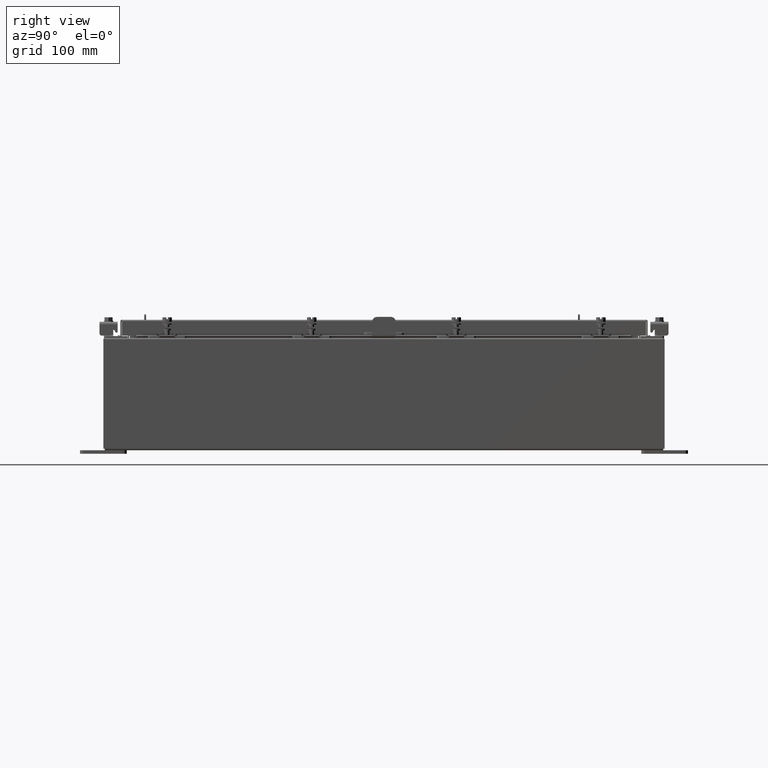
[diagram: clean part render]
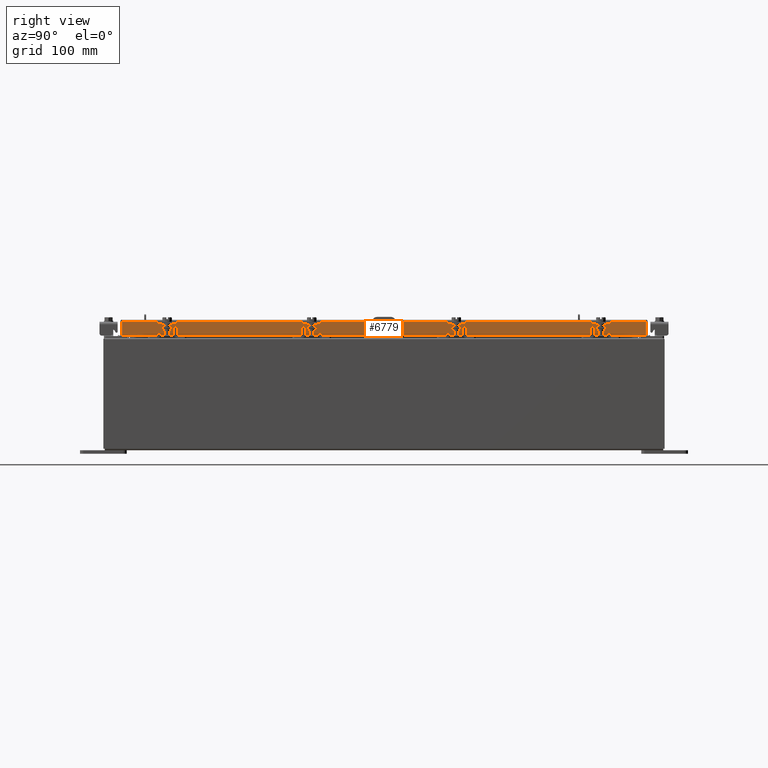
[diagram: same view with one face highlighted and labeled with its STEP entity id]
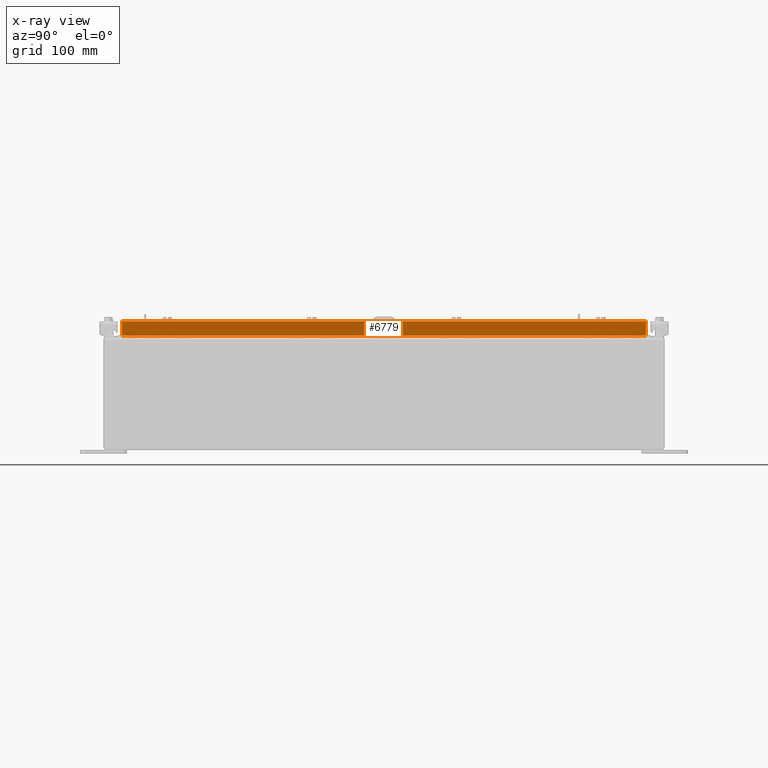
[diagram: x-ray of the same camera — body ghosted, the highlighted face saturated]
A machine part, right view. The second image highlights one B-rep face of the part: STEP entity #6779.
The next image is the same camera in x-ray: the body ghosted, the highlighted face saturated — about 0% of this face is hidden behind the body in this view.
In plain terms, the highlighted planar face has unit normal (1, 0, 0).
Its self-contained STEP definition (entity closure, byte-faithful):
#170 = LINE ( 'NONE', #18258, #8643 ) ;
#727 = CARTESIAN_POINT ( 'NONE',  ( 9.078000000000004700, -14.09399999999999900, -0.8499999999999996400 ) ) ;
#881 = DIRECTION ( 'NONE',  ( 1.000000000000000000, 0.0000000000000000000, 2.818880942772360100E-015 ) ) ;
#1609 = CARTESIAN_POINT ( 'NONE',  ( 9.077999999999995900, -13.25515786437626400, -0.8500000000000002000 ) ) ;
#1889 = DIRECTION ( 'NONE',  ( 0.0000000000000000000, -1.000000000000000000, 0.0000000000000000000 ) ) ;
#2181 = AXIS2_PLACEMENT_3D ( 'NONE', #9797, #881, #13453 ) ;
#2327 = LINE ( 'NONE', #16698, #11908 ) ;
#2797 = VERTEX_POINT ( 'NONE', #20952 ) ;
#3899 = CARTESIAN_POINT ( 'NONE',  ( 9.078000000000001200, -14.00515786437626900, -0.08770000000000007000 ) ) ;
#4134 = DIRECTION ( 'NONE',  ( -2.818880942772360100E-015, -6.982962677686265900E-015, 1.000000000000000000 ) ) ;
#4344 = CARTESIAN_POINT ( 'NONE',  ( 9.078000000000004700, 14.00515786437627200, -0.8499999999999996400 ) ) ;
#4685 = VERTEX_POINT ( 'NONE', #3899 ) ;
#5097 = DIRECTION ( 'NONE',  ( 0.0000000000000000000, -1.000000000000000000, 0.0000000000000000000 ) ) ;
#5789 = VECTOR ( 'NONE', #16717, 39.37007874015748100 ) ;
#6779 = ADVANCED_FACE ( 'NONE', ( #21692 ), #16989, .T. ) ;
#7167 = ORIENTED_EDGE ( 'NONE', *, *, #21374, .F. ) ;
#7333 = ORIENTED_EDGE ( 'NONE', *, *, #13879, .F. ) ;
#7776 = VERTEX_POINT ( 'NONE', #21811 ) ;
#8262 = ORIENTED_EDGE ( 'NONE', *, *, #16928, .T. ) ;
#8643 = VECTOR ( 'NONE', #20033, 39.37007874015748100 ) ;
#8723 = ORIENTED_EDGE ( 'NONE', *, *, #14955, .F. ) ;
#9076 = CARTESIAN_POINT ( 'NONE',  ( 9.077999999999995900, 13.25515786437627200, -0.8500000000000002000 ) ) ;
#9643 = DIRECTION ( 'NONE',  ( 0.0000000000000000000, -1.000000000000000000, 0.0000000000000000000 ) ) ;
#9797 = CARTESIAN_POINT ( 'NONE',  ( 9.078000000000001200, 0.0000000000000000000, 2.585061485449907200E-014 ) ) ;
#11030 = LINE ( 'NONE', #15822, #20487 ) ;
#11908 = VECTOR ( 'NONE', #4134, 39.37007874015748100 ) ;
#13453 = DIRECTION ( 'NONE',  ( 2.818880942772360100E-015, 0.0000000000000000000, -1.000000000000000000 ) ) ;
#13831 = ORIENTED_EDGE ( 'NONE', *, *, #19133, .T. ) ;
#13879 = EDGE_CURVE ( 'NONE', #19218, #2797, #170, .T. ) ;
#13993 = VECTOR ( 'NONE', #9643, 39.37007874015748100 ) ;
#14895 = CARTESIAN_POINT ( 'NONE',  ( 9.078000000000001200, -14.00515786437626900, -0.07469999999999978000 ) ) ;
#14955 = EDGE_CURVE ( 'NONE', #7776, #19218, #22221, .T. ) ;
#15091 = LINE ( 'NONE', #727, #13993 ) ;
#15316 = LINE ( 'NONE', #14895, #5789 ) ;
#15822 = CARTESIAN_POINT ( 'NONE',  ( 9.078000000000001200, 0.0000000000000000000, -0.08770000000000007000 ) ) ;
#16698 = CARTESIAN_POINT ( 'NONE',  ( 9.078000000000001200, 14.00515786437626900, 1.236481095165428500E-013 ) ) ;
#16717 = DIRECTION ( 'NONE',  ( -2.818880942772360100E-015, -6.982962677686265900E-015, 1.000000000000000000 ) ) ;
#16928 = EDGE_CURVE ( 'NONE', #19470, #20654, #2327, .T. ) ;
#16989 = PLANE ( 'NONE',  #2181 ) ;
#18130 = ORIENTED_EDGE ( 'NONE', *, *, #22629, .F. ) ;
#18258 = CARTESIAN_POINT ( 'NONE',  ( 9.078000000000004700, -14.09399999999999900, -0.8499999999999996400 ) ) ;
#18726 = CARTESIAN_POINT ( 'NONE',  ( 9.078000000000001200, 14.00515786437626500, -0.08770000000000007000 ) ) ;
#19133 = EDGE_CURVE ( 'NONE', #20654, #4685, #11030, .T. ) ;
#19218 = VERTEX_POINT ( 'NONE', #1609 ) ;
#19470 = VERTEX_POINT ( 'NONE', #4344 ) ;
#20033 = DIRECTION ( 'NONE',  ( 0.0000000000000000000, -1.000000000000000000, 0.0000000000000000000 ) ) ;
#20487 = VECTOR ( 'NONE', #5097, 39.37007874015748100 ) ;
#20654 = VERTEX_POINT ( 'NONE', #18726 ) ;
#20952 = CARTESIAN_POINT ( 'NONE',  ( 9.078000000000004700, -14.00515786437626400, -0.8499999999999996400 ) ) ;
#21149 = VECTOR ( 'NONE', #1889, 39.37007874015748100 ) ;
#21374 = EDGE_CURVE ( 'NONE', #19470, #7776, #15091, .T. ) ;
#21692 = FACE_OUTER_BOUND ( 'NONE', #22200, .T. ) ;
#21811 = CARTESIAN_POINT ( 'NONE',  ( 9.077999999999995900, 13.25515786437627100, -0.8500000000000002000 ) ) ;
#22200 = EDGE_LOOP ( 'NONE', ( #18130, #7333, #8723, #7167, #8262, #13831 ) ) ;
#22221 = LINE ( 'NONE', #9076, #21149 ) ;
#22629 = EDGE_CURVE ( 'NONE', #2797, #4685, #15316, .T. ) ;